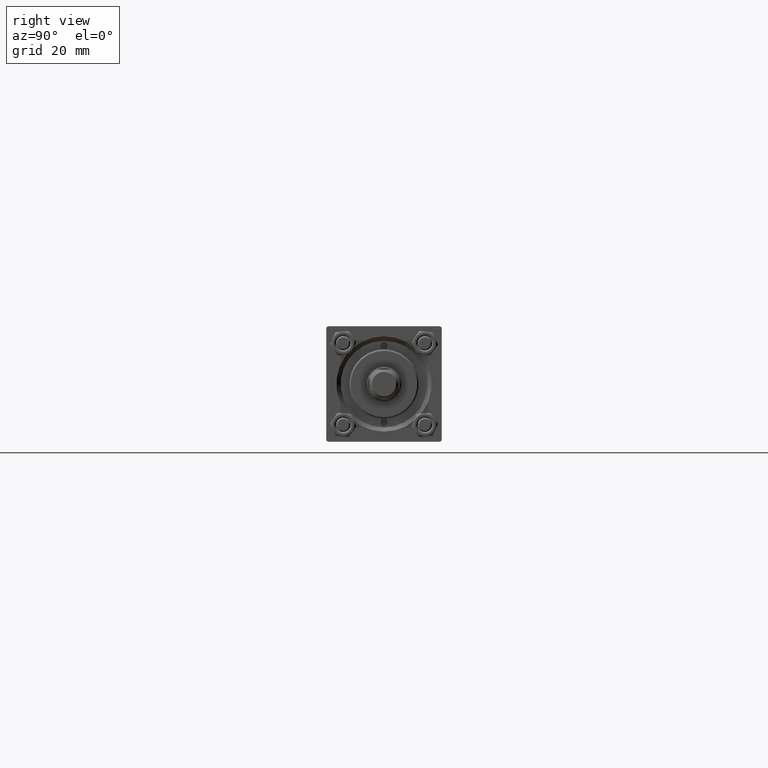
[diagram: clean part render]
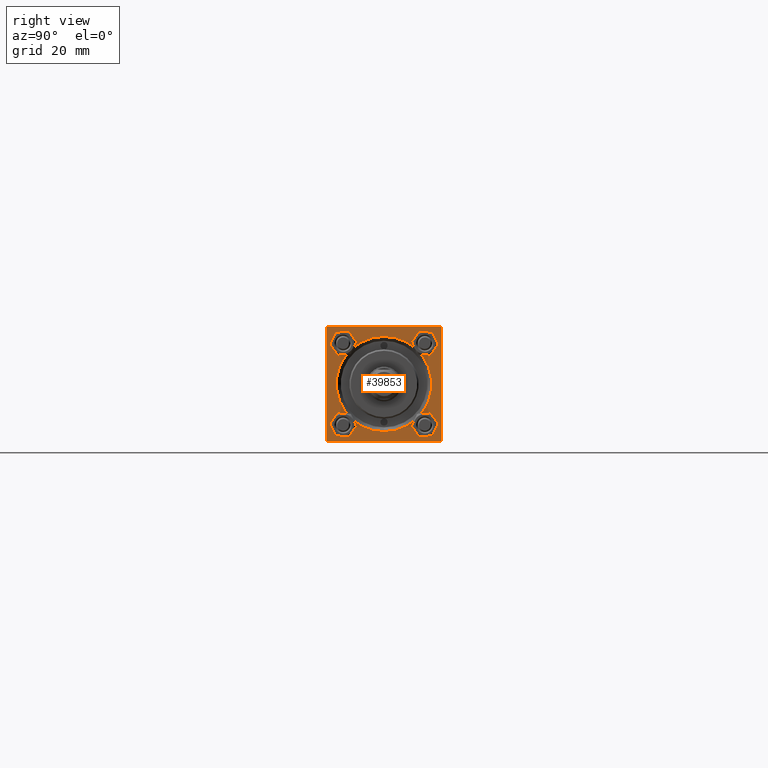
[diagram: same view with one face highlighted and labeled with its STEP entity id]
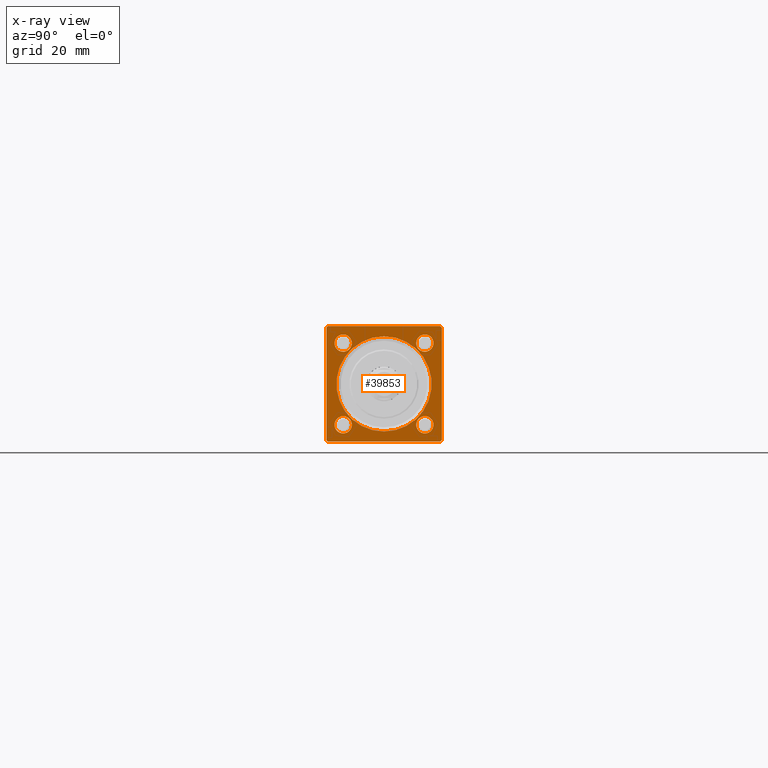
[diagram: x-ray of the same camera — body ghosted, the highlighted face saturated]
A machine part, right view. The second image highlights one B-rep face of the part: STEP entity #39853.
The next image is the same camera in x-ray: the body ghosted, the highlighted face saturated — about 0% of this face is hidden behind the body in this view.
In plain terms, the highlighted planar face has unit normal (-1, 0, 0).
Its self-contained STEP definition (entity closure, byte-faithful):
#163 = CIRCLE ( 'NONE', #39216, 16.49999999999995737 ) ;
#581 = VECTOR ( 'NONE', #13035, 1000.000000000000114 ) ;
#951 = DIRECTION ( 'NONE',  ( -1.000000000000000000, -0.000000000000000000, -0.000000000000000000 ) ) ;
#979 = ORIENTED_EDGE ( 'NONE', *, *, #6498, .T. ) ;
#1038 = AXIS2_PLACEMENT_3D ( 'NONE', #46249, #2929, #18740 ) ;
#1982 = VERTEX_POINT ( 'NONE', #43738 ) ;
#2103 = CIRCLE ( 'NONE', #5336, 2.999999999999976463 ) ;
#2527 = EDGE_CURVE ( 'NONE', #26543, #1982, #23200, .T. ) ;
#2691 = EDGE_LOOP ( 'NONE', ( #5620, #8035 ) ) ;
#2809 = VERTEX_POINT ( 'NONE', #31528 ) ;
#2824 = ORIENTED_EDGE ( 'NONE', *, *, #11076, .T. ) ;
#2929 = DIRECTION ( 'NONE',  ( -1.000000000000000000, -0.000000000000000000, -0.000000000000000000 ) ) ;
#3583 = CARTESIAN_POINT ( 'NONE',  ( 199.0000000000000000, 0.000000000000000000, 0.000000000000000000 ) ) ;
#3826 = FACE_BOUND ( 'NONE', #33107, .T. ) ;
#4867 = EDGE_CURVE ( 'NONE', #26543, #42903, #13239, .T. ) ;
#5336 = AXIS2_PLACEMENT_3D ( 'NONE', #15320, #27270, #46393 ) ;
#5620 = ORIENTED_EDGE ( 'NONE', *, *, #44321, .T. ) ;
#5815 = VERTEX_POINT ( 'NONE', #29216 ) ;
#5857 = VECTOR ( 'NONE', #20369, 1000.000000000000000 ) ;
#6242 = EDGE_LOOP ( 'NONE', ( #2824, #45844 ) ) ;
#6498 = EDGE_CURVE ( 'NONE', #44115, #31803, #38208, .T. ) ;
#8001 = EDGE_CURVE ( 'NONE', #31803, #42903, #19108, .T. ) ;
#8035 = ORIENTED_EDGE ( 'NONE', *, *, #46404, .T. ) ;
#8141 = CARTESIAN_POINT ( 'NONE',  ( 199.0000000000000000, -14.15000000000000036, -14.15000000000000036 ) ) ;
#8396 = CARTESIAN_POINT ( 'NONE',  ( 199.0000000000000000, 19.99999999999999645, 20.00000000000000000 ) ) ;
#8602 = VERTEX_POINT ( 'NONE', #25617 ) ;
#8855 = EDGE_CURVE ( 'NONE', #43394, #44115, #13346, .T. ) ;
#8861 = VERTEX_POINT ( 'NONE', #21235 ) ;
#9268 = DIRECTION ( 'NONE',  ( 0.000000000000000000, 0.000000000000000000, 1.000000000000000000 ) ) ;
#9802 = ORIENTED_EDGE ( 'NONE', *, *, #19567, .T. ) ;
#10740 = FACE_BOUND ( 'NONE', #2691, .T. ) ;
#11076 = EDGE_CURVE ( 'NONE', #8602, #23409, #163, .T. ) ;
#11159 = DIRECTION ( 'NONE',  ( -1.000000000000000000, -0.000000000000000000, -0.000000000000000000 ) ) ;
#11963 = DIRECTION ( 'NONE',  ( 0.000000000000000000, 0.7071067811865474617, -0.7071067811865474617 ) ) ;
#12218 = DIRECTION ( 'NONE',  ( 0.000000000000000000, 0.000000000000000000, 1.000000000000000000 ) ) ;
#12782 = LINE ( 'NONE', #48184, #581 ) ;
#13035 = DIRECTION ( 'NONE',  ( 0.000000000000000000, -0.7071067811865474617, 0.7071067811865474617 ) ) ;
#13239 = LINE ( 'NONE', #36166, #18669 ) ;
#13346 = LINE ( 'NONE', #28877, #19645 ) ;
#13694 = ORIENTED_EDGE ( 'NONE', *, *, #8855, .T. ) ;
#13775 = EDGE_CURVE ( 'NONE', #5815, #2809, #23017, .T. ) ;
#13914 = AXIS2_PLACEMENT_3D ( 'NONE', #36000, #16650, #32176 ) ;
#14449 = EDGE_LOOP ( 'NONE', ( #38007, #31476 ) ) ;
#14975 = CARTESIAN_POINT ( 'NONE',  ( 199.0000000000000000, 19.49999999999999645, -20.00000000000000000 ) ) ;
#15314 = LINE ( 'NONE', #46139, #16724 ) ;
#15320 = CARTESIAN_POINT ( 'NONE',  ( 199.0000000000000000, 14.15000000000000036, 14.15000000000000036 ) ) ;
#15798 = CARTESIAN_POINT ( 'NONE',  ( 199.0000000000000000, -19.49999999999999645, -20.00000000000000000 ) ) ;
#15815 = CARTESIAN_POINT ( 'NONE',  ( 199.0000000000000000, 19.99999999999999645, 19.50000000000002842 ) ) ;
#15990 = AXIS2_PLACEMENT_3D ( 'NONE', #43658, #16895, #40082 ) ;
#16650 = DIRECTION ( 'NONE',  ( -1.000000000000000000, -0.000000000000000000, -0.000000000000000000 ) ) ;
#16724 = VECTOR ( 'NONE', #23193, 1000.000000000000000 ) ;
#16895 = DIRECTION ( 'NONE',  ( -1.000000000000000000, -0.000000000000000000, -0.000000000000000000 ) ) ;
#17047 = ORIENTED_EDGE ( 'NONE', *, *, #38805, .T. ) ;
#17434 = AXIS2_PLACEMENT_3D ( 'NONE', #22621, #11159, #23369 ) ;
#17457 = ORIENTED_EDGE ( 'NONE', *, *, #28308, .F. ) ;
#17505 = AXIS2_PLACEMENT_3D ( 'NONE', #32453, #25564, #9268 ) ;
#17985 = CIRCLE ( 'NONE', #13914, 2.999999999999976463 ) ;
#18390 = AXIS2_PLACEMENT_3D ( 'NONE', #3583, #45905, #22710 ) ;
#18669 = VECTOR ( 'NONE', #35417, 1000.000000000000000 ) ;
#18740 = DIRECTION ( 'NONE',  ( 0.000000000000000000, 0.000000000000000000, 1.000000000000000000 ) ) ;
#18900 = ORIENTED_EDGE ( 'NONE', *, *, #2527, .T. ) ;
#19108 = LINE ( 'NONE', #15798, #46444 ) ;
#19400 = CARTESIAN_POINT ( 'NONE',  ( 199.0000000000000000, 14.15000000000000036, 17.14999999999997726 ) ) ;
#19539 = VECTOR ( 'NONE', #19846, 1000.000000000000000 ) ;
#19567 = EDGE_CURVE ( 'NONE', #30817, #36955, #21445, .T. ) ;
#19645 = VECTOR ( 'NONE', #44436, 1000.000000000000114 ) ;
#19846 = DIRECTION ( 'NONE',  ( 0.000000000000000000, 8.673617379884036705E-17, -1.000000000000000000 ) ) ;
#19891 = DIRECTION ( 'NONE',  ( -0.000000000000000000, 0.7071067811865474617, 0.7071067811865474617 ) ) ;
#20369 = DIRECTION ( 'NONE',  ( 0.000000000000000000, 0.000000000000000000, -1.000000000000000000 ) ) ;
#21235 = CARTESIAN_POINT ( 'NONE',  ( 199.0000000000000000, -14.15000000000000036, 11.15000000000002700 ) ) ;
#21445 = CIRCLE ( 'NONE', #38555, 2.999999999999976463 ) ;
#22012 = ORIENTED_EDGE ( 'NONE', *, *, #8001, .T. ) ;
#22462 = FACE_BOUND ( 'NONE', #14449, .T. ) ;
#22621 = CARTESIAN_POINT ( 'NONE',  ( 199.0000000000000000, -14.15000000000000036, 14.15000000000000036 ) ) ;
#22710 = DIRECTION ( 'NONE',  ( -0.000000000000000000, 0.000000000000000000, 1.000000000000000000 ) ) ;
#22955 = PLANE ( 'NONE',  #18390 ) ;
#23017 = CIRCLE ( 'NONE', #1038, 2.999999999999976463 ) ;
#23081 = ORIENTED_EDGE ( 'NONE', *, *, #4867, .F. ) ;
#23174 = ORIENTED_EDGE ( 'NONE', *, *, #27496, .T. ) ;
#23193 = DIRECTION ( 'NONE',  ( 0.000000000000000000, -1.000000000000000000, -8.673617379884035472E-17 ) ) ;
#23200 = LINE ( 'NONE', #42829, #24314 ) ;
#23369 = DIRECTION ( 'NONE',  ( 0.000000000000000000, 0.000000000000000000, 1.000000000000000000 ) ) ;
#23409 = VERTEX_POINT ( 'NONE', #42947 ) ;
#23531 = CARTESIAN_POINT ( 'NONE',  ( 199.0000000000000000, -19.49999999999999645, -20.00000000000000000 ) ) ;
#24314 = VECTOR ( 'NONE', #19891, 1000.000000000000114 ) ;
#24823 = VERTEX_POINT ( 'NONE', #19400 ) ;
#25564 = DIRECTION ( 'NONE',  ( -1.000000000000000000, -0.000000000000000000, -0.000000000000000000 ) ) ;
#25617 = CARTESIAN_POINT ( 'NONE',  ( 199.0000000000000000, 0.000000000000000000, -16.49999999999995737 ) ) ;
#26225 = DIRECTION ( 'NONE',  ( -1.000000000000000000, -0.000000000000000000, -0.000000000000000000 ) ) ;
#26543 = VERTEX_POINT ( 'NONE', #14975 ) ;
#26579 = ORIENTED_EDGE ( 'NONE', *, *, #48230, .T. ) ;
#26933 = ORIENTED_EDGE ( 'NONE', *, *, #13775, .T. ) ;
#26983 = CARTESIAN_POINT ( 'NONE',  ( 199.0000000000000000, 0.000000000000000000, 0.000000000000000000 ) ) ;
#27019 = CARTESIAN_POINT ( 'NONE',  ( 199.0000000000000000, -20.00000000000000000, -19.49999999999999645 ) ) ;
#27270 = DIRECTION ( 'NONE',  ( -1.000000000000000000, -0.000000000000000000, -0.000000000000000000 ) ) ;
#27496 = EDGE_CURVE ( 'NONE', #2809, #5815, #48980, .T. ) ;
#27637 = CARTESIAN_POINT ( 'NONE',  ( 199.0000000000000000, 14.15000000000000036, -17.14999999999997726 ) ) ;
#27737 = CARTESIAN_POINT ( 'NONE',  ( 199.0000000000000000, 14.15000000000000036, -11.15000000000002522 ) ) ;
#27751 = DIRECTION ( 'NONE',  ( -1.000000000000000000, -0.000000000000000000, -0.000000000000000000 ) ) ;
#28308 = EDGE_CURVE ( 'NONE', #31752, #1982, #43568, .T. ) ;
#28344 = VERTEX_POINT ( 'NONE', #37411 ) ;
#28480 = CARTESIAN_POINT ( 'NONE',  ( 199.0000000000000000, 19.50000000000002487, 20.00000000000000000 ) ) ;
#28877 = CARTESIAN_POINT ( 'NONE',  ( 199.0000000000000000, -20.00000000000000355, 19.50000000000002487 ) ) ;
#29029 = AXIS2_PLACEMENT_3D ( 'NONE', #46599, #31299, #47347 ) ;
#29216 = CARTESIAN_POINT ( 'NONE',  ( 199.0000000000000000, -14.15000000000000036, -11.15000000000002522 ) ) ;
#29347 = EDGE_CURVE ( 'NONE', #36955, #30817, #17985, .T. ) ;
#30817 = VERTEX_POINT ( 'NONE', #27737 ) ;
#31299 = DIRECTION ( 'NONE',  ( -1.000000000000000000, -0.000000000000000000, -0.000000000000000000 ) ) ;
#31476 = ORIENTED_EDGE ( 'NONE', *, *, #36656, .T. ) ;
#31528 = CARTESIAN_POINT ( 'NONE',  ( 199.0000000000000000, -14.15000000000000036, -17.14999999999997726 ) ) ;
#31752 = VERTEX_POINT ( 'NONE', #15815 ) ;
#31803 = VERTEX_POINT ( 'NONE', #27019 ) ;
#32082 = CIRCLE ( 'NONE', #17434, 2.999999999999976463 ) ;
#32176 = DIRECTION ( 'NONE',  ( 0.000000000000000000, 0.000000000000000000, 1.000000000000000000 ) ) ;
#32453 = CARTESIAN_POINT ( 'NONE',  ( 199.0000000000000000, -14.15000000000000036, 14.15000000000000036 ) ) ;
#33024 = CIRCLE ( 'NONE', #15990, 16.49999999999995737 ) ;
#33107 = EDGE_LOOP ( 'NONE', ( #43791, #9802 ) ) ;
#33118 = CARTESIAN_POINT ( 'NONE',  ( 199.0000000000000000, -19.50000000000003197, 19.99999999999999645 ) ) ;
#34170 = FACE_BOUND ( 'NONE', #6242, .T. ) ;
#34869 = EDGE_LOOP ( 'NONE', ( #23174, #26933 ) ) ;
#35417 = DIRECTION ( 'NONE',  ( 0.000000000000000000, -1.000000000000000000, 0.000000000000000000 ) ) ;
#36000 = CARTESIAN_POINT ( 'NONE',  ( 199.0000000000000000, 14.15000000000000036, -14.15000000000000036 ) ) ;
#36166 = CARTESIAN_POINT ( 'NONE',  ( 199.0000000000000000, 19.99999999999999645, -20.00000000000000000 ) ) ;
#36613 = CARTESIAN_POINT ( 'NONE',  ( 199.0000000000000000, -14.15000000000000036, 17.14999999999997726 ) ) ;
#36656 = EDGE_CURVE ( 'NONE', #44769, #8861, #32082, .T. ) ;
#36955 = VERTEX_POINT ( 'NONE', #27637 ) ;
#37411 = CARTESIAN_POINT ( 'NONE',  ( 199.0000000000000000, 14.15000000000000036, 11.15000000000002700 ) ) ;
#37438 = EDGE_LOOP ( 'NONE', ( #979, #22012, #23081, #18900, #17457, #26579, #17047, #13694 ) ) ;
#37593 = AXIS2_PLACEMENT_3D ( 'NONE', #8141, #27751, #12218 ) ;
#38007 = ORIENTED_EDGE ( 'NONE', *, *, #38743, .T. ) ;
#38208 = LINE ( 'NONE', #38956, #19539 ) ;
#38555 = AXIS2_PLACEMENT_3D ( 'NONE', #50405, #951, #47083 ) ;
#38564 = CARTESIAN_POINT ( 'NONE',  ( 199.0000000000000000, -20.00000000000000355, 19.50000000000002487 ) ) ;
#38684 = CIRCLE ( 'NONE', #17505, 2.999999999999976463 ) ;
#38743 = EDGE_CURVE ( 'NONE', #8861, #44769, #38684, .T. ) ;
#38805 = EDGE_CURVE ( 'NONE', #42290, #43394, #15314, .T. ) ;
#38826 = CIRCLE ( 'NONE', #29029, 2.999999999999976463 ) ;
#38956 = CARTESIAN_POINT ( 'NONE',  ( 199.0000000000000000, -20.00000000000000355, 19.99999999999999645 ) ) ;
#39216 = AXIS2_PLACEMENT_3D ( 'NONE', #26983, #26225, #42531 ) ;
#39853 = ADVANCED_FACE ( 'NONE', ( #45646, #3826, #10740, #22462, #34170, #42089 ), #22955, .F. ) ;
#40082 = DIRECTION ( 'NONE',  ( 0.000000000000000000, 0.000000000000000000, 1.000000000000000000 ) ) ;
#40704 = EDGE_CURVE ( 'NONE', #23409, #8602, #33024, .T. ) ;
#42089 = FACE_OUTER_BOUND ( 'NONE', #37438, .T. ) ;
#42290 = VERTEX_POINT ( 'NONE', #28480 ) ;
#42531 = DIRECTION ( 'NONE',  ( 0.000000000000000000, 0.000000000000000000, 1.000000000000000000 ) ) ;
#42829 = CARTESIAN_POINT ( 'NONE',  ( 199.0000000000000000, 19.99999999999999645, -19.50000000000000000 ) ) ;
#42903 = VERTEX_POINT ( 'NONE', #23531 ) ;
#42947 = CARTESIAN_POINT ( 'NONE',  ( 199.0000000000000000, 2.020667218593127578E-15, 16.49999999999995737 ) ) ;
#43394 = VERTEX_POINT ( 'NONE', #33118 ) ;
#43568 = LINE ( 'NONE', #8396, #5857 ) ;
#43658 = CARTESIAN_POINT ( 'NONE',  ( 199.0000000000000000, 0.000000000000000000, 0.000000000000000000 ) ) ;
#43738 = CARTESIAN_POINT ( 'NONE',  ( 199.0000000000000000, 19.99999999999999645, -19.50000000000000000 ) ) ;
#43791 = ORIENTED_EDGE ( 'NONE', *, *, #29347, .T. ) ;
#44115 = VERTEX_POINT ( 'NONE', #38564 ) ;
#44321 = EDGE_CURVE ( 'NONE', #28344, #24823, #2103, .T. ) ;
#44436 = DIRECTION ( 'NONE',  ( -0.000000000000000000, -0.7071067811865474617, -0.7071067811865474617 ) ) ;
#44769 = VERTEX_POINT ( 'NONE', #36613 ) ;
#45646 = FACE_BOUND ( 'NONE', #34869, .T. ) ;
#45844 = ORIENTED_EDGE ( 'NONE', *, *, #40704, .T. ) ;
#45905 = DIRECTION ( 'NONE',  ( -1.000000000000000000, 0.000000000000000000, -0.000000000000000000 ) ) ;
#46139 = CARTESIAN_POINT ( 'NONE',  ( 199.0000000000000000, 19.99999999999999645, 20.00000000000000000 ) ) ;
#46249 = CARTESIAN_POINT ( 'NONE',  ( 199.0000000000000000, -14.15000000000000036, -14.15000000000000036 ) ) ;
#46393 = DIRECTION ( 'NONE',  ( 0.000000000000000000, 0.000000000000000000, 1.000000000000000000 ) ) ;
#46404 = EDGE_CURVE ( 'NONE', #24823, #28344, #38826, .T. ) ;
#46444 = VECTOR ( 'NONE', #11963, 1000.000000000000114 ) ;
#46599 = CARTESIAN_POINT ( 'NONE',  ( 199.0000000000000000, 14.15000000000000036, 14.15000000000000036 ) ) ;
#47083 = DIRECTION ( 'NONE',  ( 0.000000000000000000, 0.000000000000000000, 1.000000000000000000 ) ) ;
#47347 = DIRECTION ( 'NONE',  ( 0.000000000000000000, 0.000000000000000000, 1.000000000000000000 ) ) ;
#48184 = CARTESIAN_POINT ( 'NONE',  ( 199.0000000000000000, 19.50000000000002487, 20.00000000000000000 ) ) ;
#48230 = EDGE_CURVE ( 'NONE', #31752, #42290, #12782, .T. ) ;
#48980 = CIRCLE ( 'NONE', #37593, 2.999999999999976463 ) ;
#50405 = CARTESIAN_POINT ( 'NONE',  ( 199.0000000000000000, 14.15000000000000036, -14.15000000000000036 ) ) ;